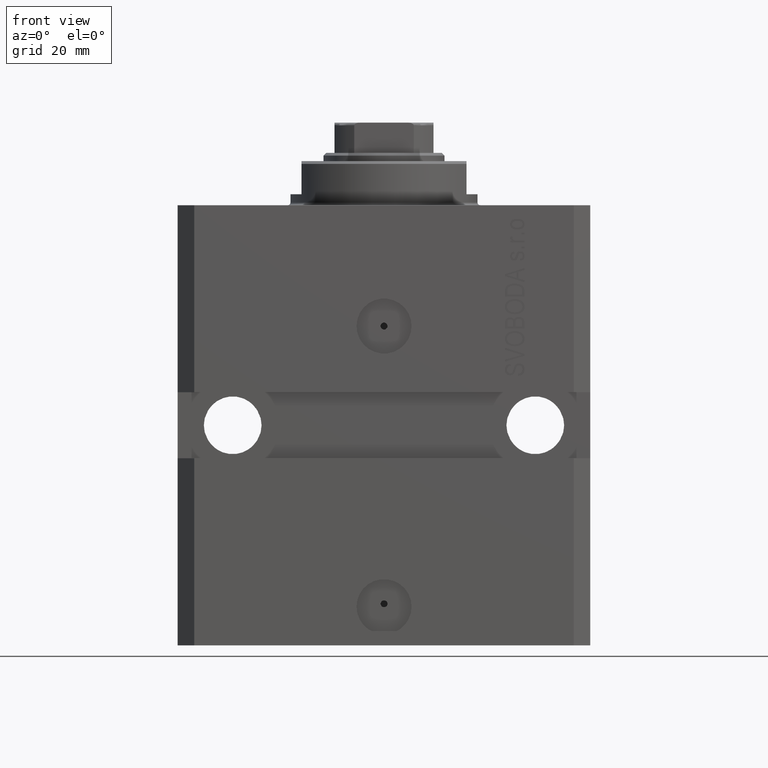
[diagram: clean part render]
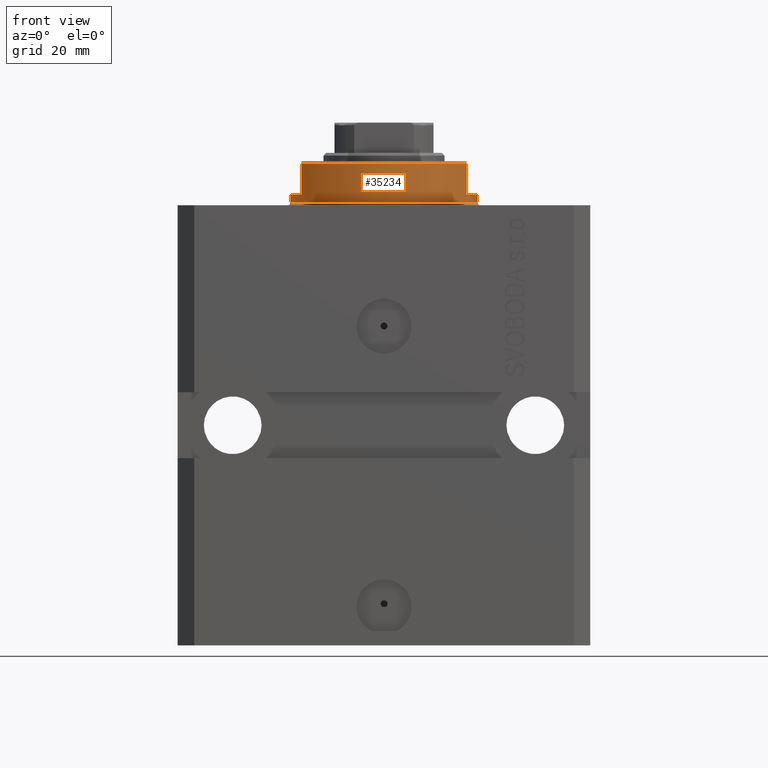
[diagram: same view with one face highlighted and labeled with its STEP entity id]
A machine part, front view. The second image highlights one B-rep face of the part: STEP entity #35234.
In plain terms, the highlighted cylindrical surface (partial cylindrical patch) has radius 17 mm, axis along (0, 0, -1).
Its self-contained STEP definition (entity closure, byte-faithful):
#859 = EDGE_CURVE ( 'NONE', #29506, #31519, #29673, .T. ) ;
#864 = DIRECTION ( 'NONE',  ( -0.000000000000000000, -0.000000000000000000, 1.000000000000000000 ) ) ;
#1071 = EDGE_CURVE ( 'NONE', #20580, #22108, #39756, .T. ) ;
#1078 = DIRECTION ( 'NONE',  ( 1.000000000000000000, 0.000000000000000000, 0.000000000000000000 ) ) ;
#2026 = ORIENTED_EDGE ( 'NONE', *, *, #1071, .F. ) ;
#2864 = ORIENTED_EDGE ( 'NONE', *, *, #21393, .F. ) ;
#3141 = AXIS2_PLACEMENT_3D ( 'NONE', #42529, #22423, #43198 ) ;
#5820 = DIRECTION ( 'NONE',  ( -0.000000000000000000, -0.000000000000000000, 1.000000000000000000 ) ) ;
#7266 = AXIS2_PLACEMENT_3D ( 'NONE', #41093, #33644, #40631 ) ;
#7318 = EDGE_CURVE ( 'NONE', #35787, #38923, #43303, .T. ) ;
#7400 = CARTESIAN_POINT ( 'NONE',  ( 0.000000000000000000, 0.000000000000000000, -8.000000000000000000 ) ) ;
#7598 = CARTESIAN_POINT ( 'NONE',  ( -15.00000000000000000, -8.000000000000001776, -7.500000000000007105 ) ) ;
#7862 = ORIENTED_EDGE ( 'NONE', *, *, #7318, .T. ) ;
#7909 = ORIENTED_EDGE ( 'NONE', *, *, #21226, .T. ) ;
#8267 = CARTESIAN_POINT ( 'NONE',  ( -17.00000000000000000, 2.081899558550500280E-15, -0.5000000000000004441 ) ) ;
#8928 = VERTEX_POINT ( 'NONE', #27814 ) ;
#9007 = VECTOR ( 'NONE', #29394, 1000.000000000000000 ) ;
#9169 = DIRECTION ( 'NONE',  ( 0.000000000000000000, 0.000000000000000000, 1.000000000000000000 ) ) ;
#9530 = LINE ( 'NONE', #15640, #30300 ) ;
#9663 = CARTESIAN_POINT ( 'NONE',  ( 17.00000000000000000, 0.000000000000000000, -8.000000000000000000 ) ) ;
#9694 = EDGE_CURVE ( 'NONE', #8928, #30442, #9530, .T. ) ;
#10599 = ORIENTED_EDGE ( 'NONE', *, *, #9694, .T. ) ;
#10838 = EDGE_CURVE ( 'NONE', #38923, #22108, #39664, .T. ) ;
#11114 = CIRCLE ( 'NONE', #3141, 17.00000000000000000 ) ;
#12450 = CARTESIAN_POINT ( 'NONE',  ( 0.000000000000000000, 0.000000000000000000, -2.000000000000000000 ) ) ;
#13142 = DIRECTION ( 'NONE',  ( 0.000000000000000000, 0.000000000000000000, -1.000000000000000000 ) ) ;
#14403 = CYLINDRICAL_SURFACE ( 'NONE', #38884, 17.00000000000000000 ) ;
#15640 = CARTESIAN_POINT ( 'NONE',  ( -15.00000000000000000, -8.000000000000001776, -8.000000000000000000 ) ) ;
#16183 = ORIENTED_EDGE ( 'NONE', *, *, #10838, .T. ) ;
#18219 = FACE_OUTER_BOUND ( 'NONE', #36989, .T. ) ;
#20580 = VERTEX_POINT ( 'NONE', #26472 ) ;
#20625 = AXIS2_PLACEMENT_3D ( 'NONE', #12450, #28560, #26203 ) ;
#21226 = EDGE_CURVE ( 'NONE', #30442, #31519, #24047, .T. ) ;
#21393 = EDGE_CURVE ( 'NONE', #35787, #29506, #11114, .T. ) ;
#22108 = VERTEX_POINT ( 'NONE', #8267 ) ;
#22423 = DIRECTION ( 'NONE',  ( 0.000000000000000000, 0.000000000000000000, -1.000000000000000000 ) ) ;
#24047 = CIRCLE ( 'NONE', #42098, 17.00000000000000000 ) ;
#25165 = VECTOR ( 'NONE', #5820, 1000.000000000000000 ) ;
#26203 = DIRECTION ( 'NONE',  ( -1.000000000000000000, 0.000000000000000000, 0.000000000000000000 ) ) ;
#26472 = CARTESIAN_POINT ( 'NONE',  ( -17.00000000000000000, 2.081899558550500280E-15, -2.000000000000000000 ) ) ;
#27455 = ORIENTED_EDGE ( 'NONE', *, *, #27820, .F. ) ;
#27814 = CARTESIAN_POINT ( 'NONE',  ( -14.99999999999999645, -8.000000000000003553, -2.000000000000000000 ) ) ;
#27820 = EDGE_CURVE ( 'NONE', #8928, #20580, #32158, .T. ) ;
#28456 = CARTESIAN_POINT ( 'NONE',  ( 17.00000000000000000, 0.000000000000000000, -2.000000000000000000 ) ) ;
#28560 = DIRECTION ( 'NONE',  ( 0.000000000000000000, 0.000000000000000000, -1.000000000000000000 ) ) ;
#29394 = DIRECTION ( 'NONE',  ( -0.000000000000000000, -0.000000000000000000, 1.000000000000000000 ) ) ;
#29452 = CARTESIAN_POINT ( 'NONE',  ( 15.00000000000000000, -8.000000000000001776, -8.000000000000000000 ) ) ;
#29506 = VERTEX_POINT ( 'NONE', #37541 ) ;
#29673 = LINE ( 'NONE', #29452, #33377 ) ;
#30300 = VECTOR ( 'NONE', #13142, 1000.000000000000000 ) ;
#30442 = VERTEX_POINT ( 'NONE', #7598 ) ;
#30610 = CARTESIAN_POINT ( 'NONE',  ( 0.000000000000000000, 0.000000000000000000, -7.500000000000007105 ) ) ;
#31519 = VERTEX_POINT ( 'NONE', #42075 ) ;
#32158 = CIRCLE ( 'NONE', #20625, 17.00000000000000000 ) ;
#32835 = DIRECTION ( 'NONE',  ( 0.000000000000000000, 0.000000000000000000, -1.000000000000000000 ) ) ;
#33377 = VECTOR ( 'NONE', #32835, 1000.000000000000000 ) ;
#33644 = DIRECTION ( 'NONE',  ( -0.000000000000000000, -0.000000000000000000, -1.000000000000000000 ) ) ;
#35149 = CARTESIAN_POINT ( 'NONE',  ( 17.00000000000000000, 0.000000000000000000, -0.5000000000000004441 ) ) ;
#35179 = ORIENTED_EDGE ( 'NONE', *, *, #859, .F. ) ;
#35234 = ADVANCED_FACE ( 'NONE', ( #18219 ), #14403, .T. ) ;
#35724 = CARTESIAN_POINT ( 'NONE',  ( -17.00000000000000000, 2.081899558550500280E-15, -8.000000000000000000 ) ) ;
#35787 = VERTEX_POINT ( 'NONE', #28456 ) ;
#36989 = EDGE_LOOP ( 'NONE', ( #2026, #27455, #10599, #7909, #35179, #2864, #7862, #16183 ) ) ;
#37541 = CARTESIAN_POINT ( 'NONE',  ( 14.99999999999999645, -8.000000000000003553, -2.000000000000000000 ) ) ;
#38884 = AXIS2_PLACEMENT_3D ( 'NONE', #7400, #864, #1078 ) ;
#38923 = VERTEX_POINT ( 'NONE', #35149 ) ;
#39664 = CIRCLE ( 'NONE', #7266, 17.00000000000000000 ) ;
#39756 = LINE ( 'NONE', #35724, #9007 ) ;
#40518 = DIRECTION ( 'NONE',  ( -1.000000000000000000, 0.000000000000000000, 0.000000000000000000 ) ) ;
#40631 = DIRECTION ( 'NONE',  ( 1.000000000000000000, 0.000000000000000000, 0.000000000000000000 ) ) ;
#41093 = CARTESIAN_POINT ( 'NONE',  ( 0.000000000000000000, 0.000000000000000000, -0.5000000000000004441 ) ) ;
#42075 = CARTESIAN_POINT ( 'NONE',  ( 15.00000000000000000, -8.000000000000001776, -7.500000000000007105 ) ) ;
#42098 = AXIS2_PLACEMENT_3D ( 'NONE', #30610, #9169, #40518 ) ;
#42529 = CARTESIAN_POINT ( 'NONE',  ( 0.000000000000000000, 0.000000000000000000, -2.000000000000000000 ) ) ;
#43198 = DIRECTION ( 'NONE',  ( -1.000000000000000000, 0.000000000000000000, 0.000000000000000000 ) ) ;
#43303 = LINE ( 'NONE', #9663, #25165 ) ;